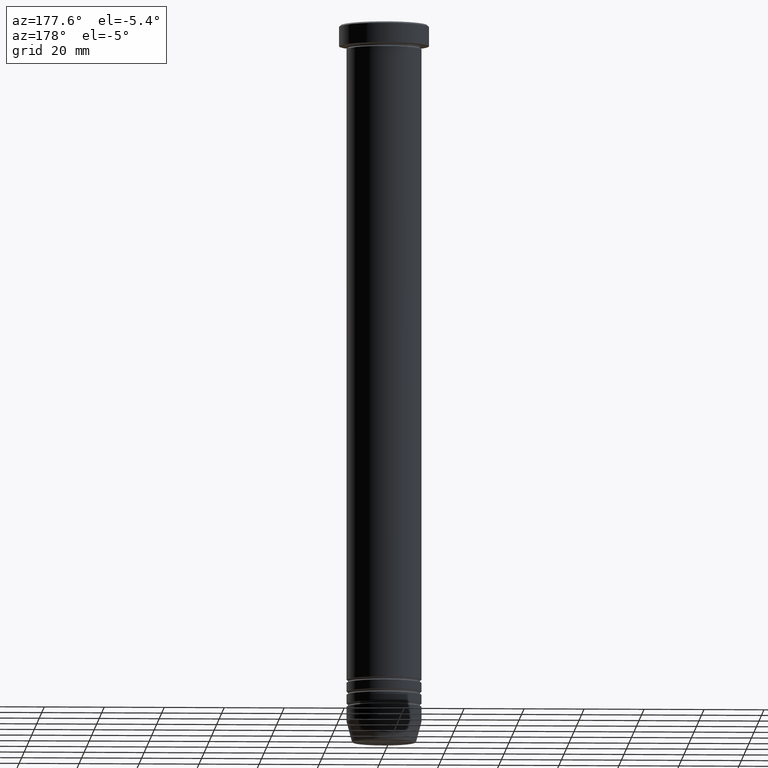
[diagram: clean part render]
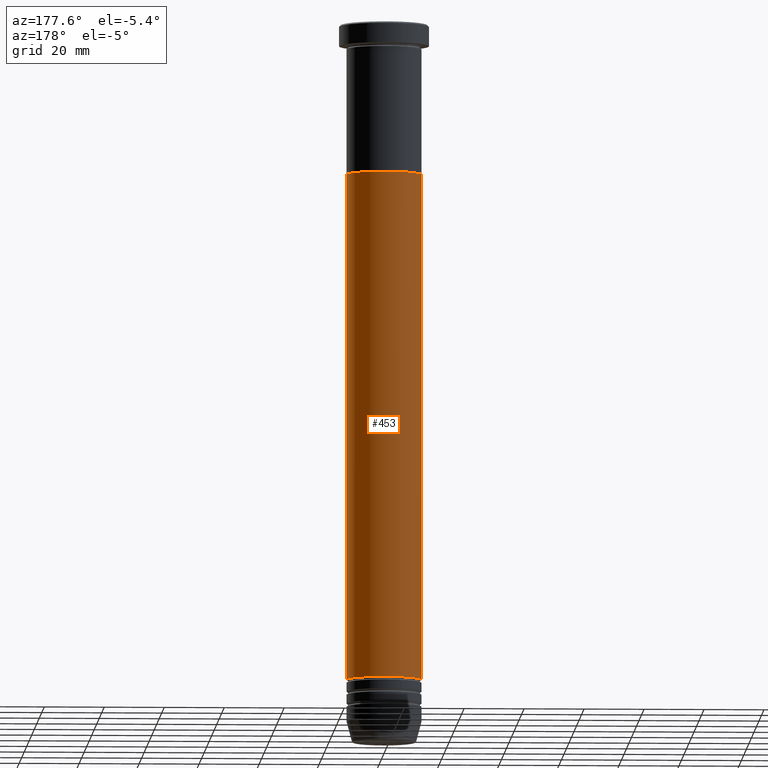
[diagram: same view with one face highlighted and labeled with its STEP entity id]
A machine part, auxiliary view. The second image highlights one B-rep face of the part: STEP entity #453.
In plain terms, the highlighted cylindrical surface (partial cylindrical patch) has radius 12.5 mm, axis along (-0, -0, 1).
Its self-contained STEP definition (entity closure, byte-faithful):
#50 = CIRCLE ( 'NONE', #406, 12.49999999999999289 ) ;
#100 = CARTESIAN_POINT ( 'NONE',  ( -12.49999999999999645, 1.530808498934191127E-15, 0.000000000000000000 ) ) ;
#154 = DIRECTION ( 'NONE',  ( -0.000000000000000000, -0.000000000000000000, 1.000000000000000000 ) ) ;
#272 = ORIENTED_EDGE ( 'NONE', *, *, #464, .T. ) ;
#334 = CARTESIAN_POINT ( 'NONE',  ( 0.000000000000000000, 0.000000000000000000, 0.000000000000000000 ) ) ;
#335 = ORIENTED_EDGE ( 'NONE', *, *, #482, .F. ) ;
#338 = AXIS2_PLACEMENT_3D ( 'NONE', #334, #753, #823 ) ;
#346 = CARTESIAN_POINT ( 'NONE',  ( -12.49999999999999289, 1.530808498934190930E-15, -219.0000000000000284 ) ) ;
#390 = VERTEX_POINT ( 'NONE', #346 ) ;
#405 = VERTEX_POINT ( 'NONE', #583 ) ;
#406 = AXIS2_PLACEMENT_3D ( 'NONE', #459, #154, #792 ) ;
#440 = LINE ( 'NONE', #859, #1013 ) ;
#453 = ADVANCED_FACE ( 'NONE', ( #496 ), #667, .T. ) ;
#459 = CARTESIAN_POINT ( 'NONE',  ( 0.000000000000000000, 0.000000000000000000, -219.0000000000000284 ) ) ;
#464 = EDGE_CURVE ( 'NONE', #390, #405, #500, .T. ) ;
#465 = CARTESIAN_POINT ( 'NONE',  ( 12.50000000000000000, 0.000000000000000000, -50.00000000000000000 ) ) ;
#482 = EDGE_CURVE ( 'NONE', #514, #713, #440, .T. ) ;
#496 = FACE_OUTER_BOUND ( 'NONE', #633, .T. ) ;
#500 = LINE ( 'NONE', #100, #608 ) ;
#514 = VERTEX_POINT ( 'NONE', #614 ) ;
#583 = CARTESIAN_POINT ( 'NONE',  ( -12.50000000000000000, 1.530808498934191521E-15, -50.00000000000000000 ) ) ;
#589 = ORIENTED_EDGE ( 'NONE', *, *, #1019, .F. ) ;
#606 = CARTESIAN_POINT ( 'NONE',  ( 0.000000000000000000, 0.000000000000000000, -50.00000000000000000 ) ) ;
#608 = VECTOR ( 'NONE', #926, 1000.000000000000000 ) ;
#614 = CARTESIAN_POINT ( 'NONE',  ( 12.49999999999999289, 0.000000000000000000, -219.0000000000000284 ) ) ;
#633 = EDGE_LOOP ( 'NONE', ( #666, #272, #589, #335 ) ) ;
#635 = EDGE_CURVE ( 'NONE', #514, #390, #50, .T. ) ;
#666 = ORIENTED_EDGE ( 'NONE', *, *, #635, .T. ) ;
#667 = CYLINDRICAL_SURFACE ( 'NONE', #338, 12.49999999999999645 ) ;
#713 = VERTEX_POINT ( 'NONE', #465 ) ;
#753 = DIRECTION ( 'NONE',  ( -0.000000000000000000, -0.000000000000000000, 1.000000000000000000 ) ) ;
#770 = DIRECTION ( 'NONE',  ( -0.000000000000000000, -0.000000000000000000, 1.000000000000000000 ) ) ;
#792 = DIRECTION ( 'NONE',  ( 1.000000000000000000, 0.000000000000000000, 0.000000000000000000 ) ) ;
#823 = DIRECTION ( 'NONE',  ( 1.000000000000000000, 0.000000000000000000, 0.000000000000000000 ) ) ;
#857 = DIRECTION ( 'NONE',  ( -0.000000000000000000, -0.000000000000000000, 1.000000000000000000 ) ) ;
#859 = CARTESIAN_POINT ( 'NONE',  ( 12.49999999999999645, 0.000000000000000000, 0.000000000000000000 ) ) ;
#924 = DIRECTION ( 'NONE',  ( 1.000000000000000000, 0.000000000000000000, 0.000000000000000000 ) ) ;
#926 = DIRECTION ( 'NONE',  ( -0.000000000000000000, -0.000000000000000000, 1.000000000000000000 ) ) ;
#946 = AXIS2_PLACEMENT_3D ( 'NONE', #606, #857, #924 ) ;
#977 = CIRCLE ( 'NONE', #946, 12.50000000000000000 ) ;
#1013 = VECTOR ( 'NONE', #770, 1000.000000000000000 ) ;
#1019 = EDGE_CURVE ( 'NONE', #713, #405, #977, .T. ) ;